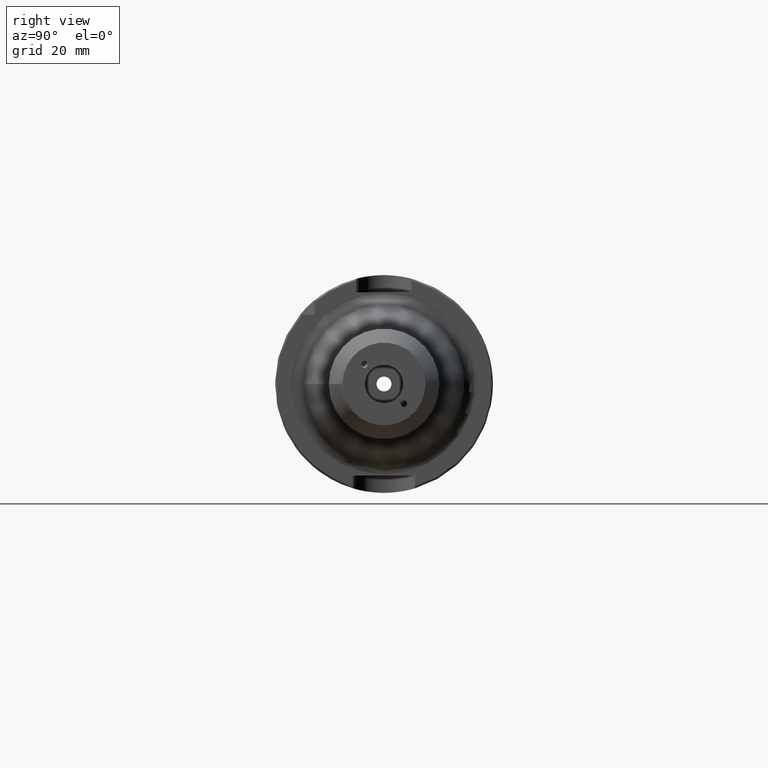
[diagram: clean part render]
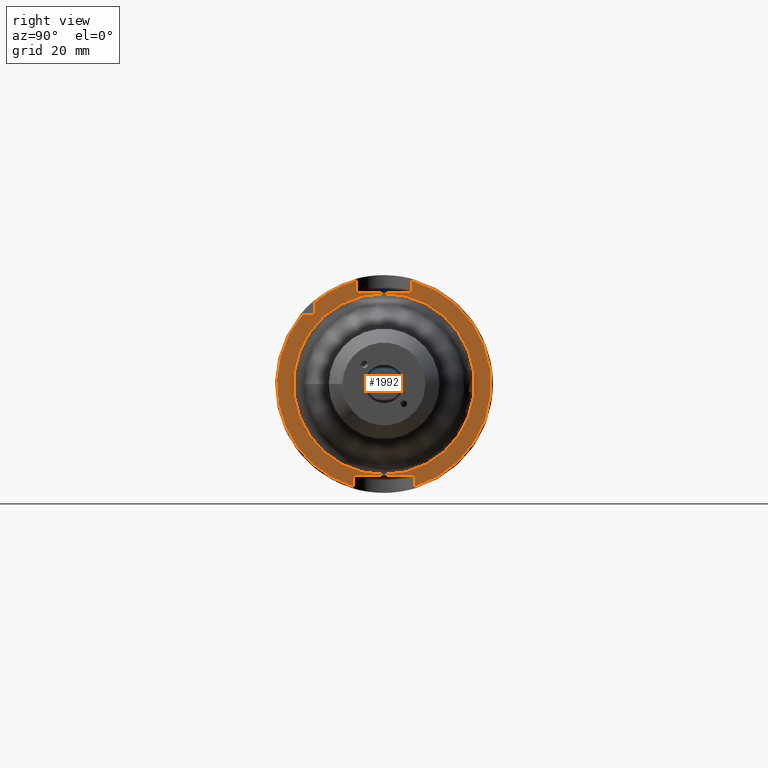
[diagram: same view with one face highlighted and labeled with its STEP entity id]
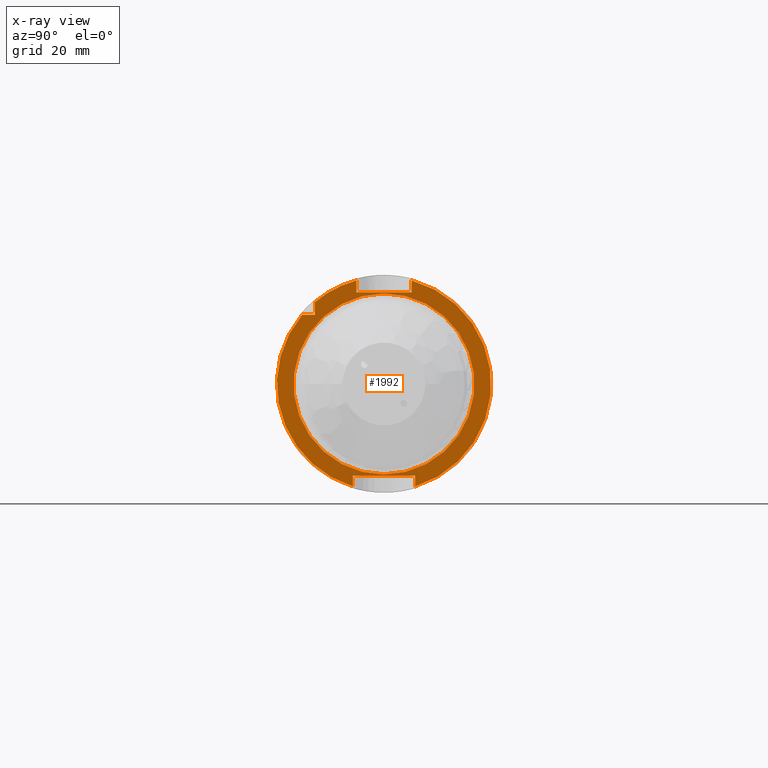
[diagram: x-ray of the same camera — body ghosted, the highlighted face saturated]
A machine part, right view. The second image highlights one B-rep face of the part: STEP entity #1992.
The next image is the same camera in x-ray: the body ghosted, the highlighted face saturated — about 0% of this face is hidden behind the body in this view.
In plain terms, the highlighted planar face has unit normal (1, 0, 0).
Its self-contained STEP definition (entity closure, byte-faithful):
#89=FACE_BOUND('',#339,.T.);
#102=PLANE('',#2144);
#218=FACE_OUTER_BOUND('',#338,.T.);
#338=EDGE_LOOP('',(#1358,#1359,#1360,#1361,#1362,#1363,#1364,#1365,#1366,
#1367,#1368));
#339=EDGE_LOOP('',(#1369));
#470=LINE('',#3032,#581);
#471=LINE('',#3036,#582);
#472=LINE('',#3038,#583);
#473=LINE('',#3040,#584);
#474=LINE('',#3044,#585);
#475=LINE('',#3046,#586);
#476=LINE('',#3048,#587);
#477=LINE('',#3051,#588);
#581=VECTOR('',#2420,10.);
#582=VECTOR('',#2423,10.);
#583=VECTOR('',#2424,10.);
#584=VECTOR('',#2425,10.);
#585=VECTOR('',#2428,10.);
#586=VECTOR('',#2429,10.);
#587=VECTOR('',#2430,10.);
#588=VECTOR('',#2433,10.);
#691=CIRCLE('',#2140,26.1970652873778);
#694=CIRCLE('',#2145,31.);
#695=CIRCLE('',#2146,31.);
#696=CIRCLE('',#2147,31.);
#819=VERTEX_POINT('',#3021);
#821=VERTEX_POINT('',#3030);
#822=VERTEX_POINT('',#3031);
#823=VERTEX_POINT('',#3033);
#824=VERTEX_POINT('',#3035);
#825=VERTEX_POINT('',#3037);
#826=VERTEX_POINT('',#3039);
#827=VERTEX_POINT('',#3041);
#828=VERTEX_POINT('',#3043);
#829=VERTEX_POINT('',#3045);
#830=VERTEX_POINT('',#3047);
#831=VERTEX_POINT('',#3049);
#1027=EDGE_CURVE('',#819,#819,#691,.T.);
#1031=EDGE_CURVE('',#821,#822,#470,.T.);
#1032=EDGE_CURVE('',#822,#823,#694,.T.);
#1033=EDGE_CURVE('',#823,#824,#471,.T.);
#1034=EDGE_CURVE('',#824,#825,#472,.T.);
#1035=EDGE_CURVE('',#825,#826,#473,.T.);
#1036=EDGE_CURVE('',#826,#827,#695,.T.);
#1037=EDGE_CURVE('',#827,#828,#474,.T.);
#1038=EDGE_CURVE('',#828,#829,#475,.T.);
#1039=EDGE_CURVE('',#829,#830,#476,.T.);
#1040=EDGE_CURVE('',#830,#831,#696,.T.);
#1041=EDGE_CURVE('',#831,#821,#477,.T.);
#1358=ORIENTED_EDGE('',*,*,#1031,.T.);
#1359=ORIENTED_EDGE('',*,*,#1032,.T.);
#1360=ORIENTED_EDGE('',*,*,#1033,.T.);
#1361=ORIENTED_EDGE('',*,*,#1034,.T.);
#1362=ORIENTED_EDGE('',*,*,#1035,.T.);
#1363=ORIENTED_EDGE('',*,*,#1036,.T.);
#1364=ORIENTED_EDGE('',*,*,#1037,.T.);
#1365=ORIENTED_EDGE('',*,*,#1038,.T.);
#1366=ORIENTED_EDGE('',*,*,#1039,.T.);
#1367=ORIENTED_EDGE('',*,*,#1040,.T.);
#1368=ORIENTED_EDGE('',*,*,#1041,.T.);
#1369=ORIENTED_EDGE('',*,*,#1027,.F.);
#1992=ADVANCED_FACE('',(#218,#89),#102,.T.);
#2140=AXIS2_PLACEMENT_3D('',#3023,#2409,#2410);
#2144=AXIS2_PLACEMENT_3D('',#3029,#2418,#2419);
#2145=AXIS2_PLACEMENT_3D('',#3034,#2421,#2422);
#2146=AXIS2_PLACEMENT_3D('',#3042,#2426,#2427);
#2147=AXIS2_PLACEMENT_3D('',#3050,#2431,#2432);
#2409=DIRECTION('center_axis',(1.,0.,0.));
#2410=DIRECTION('ref_axis',(0.,-1.,-1.22464679914735E-16));
#2418=DIRECTION('center_axis',(1.,0.,0.));
#2419=DIRECTION('ref_axis',(0.,0.,-1.));
#2420=DIRECTION('',(0.,-1.,0.));
#2421=DIRECTION('center_axis',(1.,0.,0.));
#2422=DIRECTION('ref_axis',(0.,0.,-1.));
#2423=DIRECTION('',(0.,0.,1.));
#2424=DIRECTION('',(0.,1.,0.));
#2425=DIRECTION('',(0.,0.,-1.));
#2426=DIRECTION('center_axis',(1.,0.,0.));
#2427=DIRECTION('ref_axis',(0.,0.,-1.));
#2428=DIRECTION('',(0.,0.,-1.));
#2429=DIRECTION('',(0.,-1.,0.));
#2430=DIRECTION('',(0.,0.,1.));
#2431=DIRECTION('center_axis',(1.,0.,0.));
#2432=DIRECTION('ref_axis',(0.,0.,-1.));
#2433=DIRECTION('',(0.,0.,-1.));
#3021=CARTESIAN_POINT('',(26.,-3.20821521512415E-15,-26.1970652873778));
#3023=CARTESIAN_POINT('Origin',(26.,0.,0.));
#3029=CARTESIAN_POINT('Origin',(26.,0.,0.));
#3030=CARTESIAN_POINT('',(26.,-20.,20.));
#3031=CARTESIAN_POINT('',(26.,-23.685438564654,20.));
#3032=CARTESIAN_POINT('',(26.,-12.,20.));
#3033=CARTESIAN_POINT('',(26.,-9.,-29.6647939483827));
#3034=CARTESIAN_POINT('Origin',(26.,0.,0.));
#3035=CARTESIAN_POINT('',(26.,-9.,-26.5));
#3036=CARTESIAN_POINT('',(26.,-9.,-13.25));
#3037=CARTESIAN_POINT('',(26.,9.,-26.5));
#3038=CARTESIAN_POINT('',(26.,1.94289029309402E-15,-26.5));
#3039=CARTESIAN_POINT('',(26.,9.,-29.6647939483827));
#3040=CARTESIAN_POINT('',(26.,9.,-13.25));
#3041=CARTESIAN_POINT('',(26.,8.,29.9499582637439));
#3042=CARTESIAN_POINT('Origin',(26.,0.,0.));
#3043=CARTESIAN_POINT('',(26.,8.,26.5));
#3044=CARTESIAN_POINT('',(26.,8.,13.25));
#3045=CARTESIAN_POINT('',(26.,-8.,26.5));
#3046=CARTESIAN_POINT('',(26.,5.55111512312578E-16,26.5));
#3047=CARTESIAN_POINT('',(26.,-8.,29.9499582637439));
#3048=CARTESIAN_POINT('',(26.,-8.,13.25));
#3049=CARTESIAN_POINT('',(26.,-20.,23.685438564654));
#3050=CARTESIAN_POINT('Origin',(26.,0.,0.));
#3051=CARTESIAN_POINT('',(26.,-20.,10.));